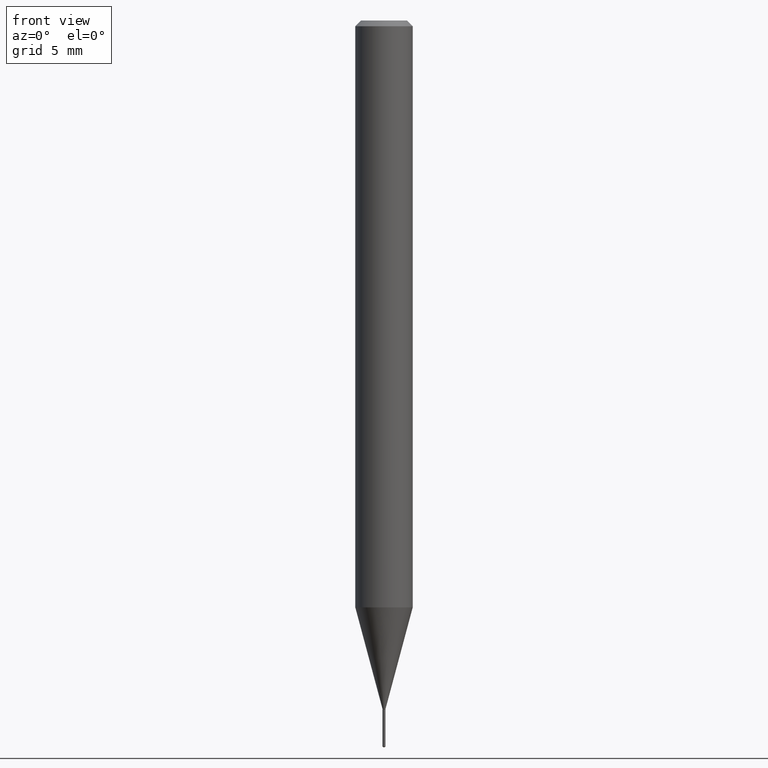
[diagram: clean part render]
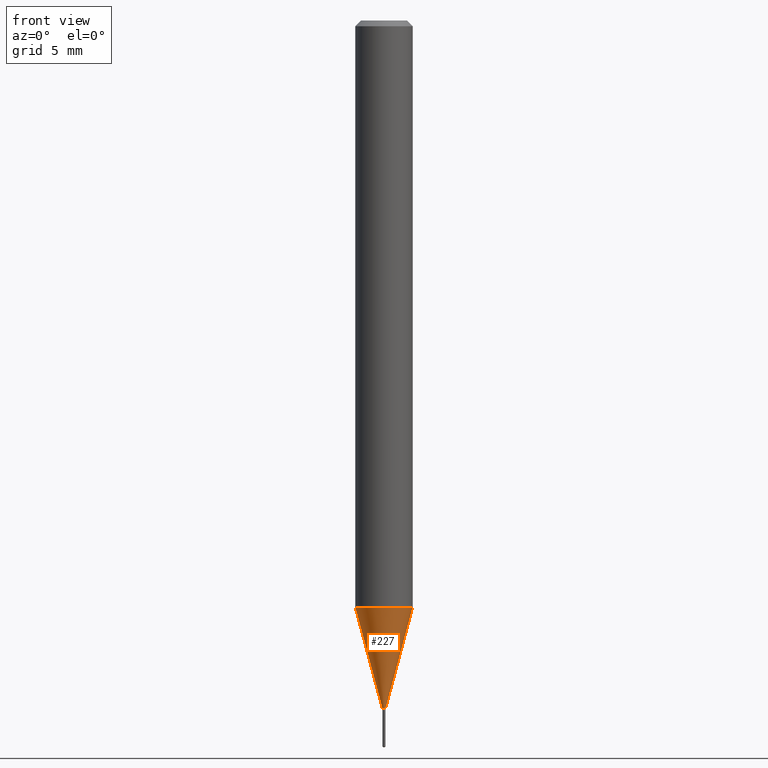
[diagram: same view with one face highlighted and labeled with its STEP entity id]
A machine part, front view. The second image highlights one B-rep face of the part: STEP entity #227.
In plain terms, the highlighted conical surface has half-angle 15 deg.
Its self-contained STEP definition (entity closure, byte-faithful):
#10 = VERTEX_POINT ( 'NONE', #406 ) ;
#26 = CARTESIAN_POINT ( 'NONE',  ( 2.953828850696113745E-29, -4.217284753032831464E-15, -1.207878359856899841 ) ) ;
#30 = DIRECTION ( 'NONE',  ( 0.2588190451025213501, 1.565188264969621968E-15, 0.9659258262890682012 ) ) ;
#36 = CIRCLE ( 'NONE', #320, 0.003150000000000000022 ) ;
#44 = VECTOR ( 'NONE', #30, 39.37007874015747433 ) ;
#57 = EDGE_LOOP ( 'NONE', ( #331, #364, #314, #404 ) ) ;
#67 = EDGE_CURVE ( 'NONE', #372, #10, #212, .T. ) ;
#133 = DIRECTION ( 'NONE',  ( 1.000000000000000000, -6.982962677686263555E-15, 0.000000000000000000 ) ) ;
#146 = DIRECTION ( 'NONE',  ( 1.000000000000000000, -6.982962677686347963E-15, 0.000000000000000000 ) ) ;
#148 = VERTEX_POINT ( 'NONE', #348 ) ;
#193 = CARTESIAN_POINT ( 'NONE',  ( 3.464006563961245725E-29, -4.945683316471316037E-15, -1.416500000000000092 ) ) ;
#200 = LINE ( 'NONE', #274, #44 ) ;
#212 = LINE ( 'NONE', #366, #319 ) ;
#227 = ADVANCED_FACE ( 'NONE', ( #260 ), #349, .T. ) ;
#239 = CARTESIAN_POINT ( 'NONE',  ( -0.003150000000000000022, -4.923999516562641581E-15, -1.416500000000000092 ) ) ;
#260 = FACE_OUTER_BOUND ( 'NONE', #57, .T. ) ;
#265 = AXIS2_PLACEMENT_3D ( 'NONE', #26, #396, #133 ) ;
#274 = CARTESIAN_POINT ( 'NONE',  ( 0.003150000000000000022, -4.967679648906027771E-15, -1.416500000000000092 ) ) ;
#314 = ORIENTED_EDGE ( 'NONE', *, *, #425, .T. ) ;
#315 = DIRECTION ( 'NONE',  ( -2.445468806185136597E-29, 3.491481338843145583E-15, 1.000000000000000000 ) ) ;
#319 = VECTOR ( 'NONE', #330, 39.37007874015747433 ) ;
#320 = AXIS2_PLACEMENT_3D ( 'NONE', #193, #315, #462 ) ;
#330 = DIRECTION ( 'NONE',  ( -0.2588190451025213501, 5.211531920934551042E-15, 0.9659258262890682012 ) ) ;
#331 = ORIENTED_EDGE ( 'NONE', *, *, #67, .F. ) ;
#344 = CARTESIAN_POINT ( 'NONE',  ( 3.464006563961245725E-29, -4.945683316471316037E-15, -1.416500000000000092 ) ) ;
#348 = CARTESIAN_POINT ( 'NONE',  ( 0.003150000000000000022, -4.967679648906027771E-15, -1.416500000000000092 ) ) ;
#349 = CONICAL_SURFACE ( 'NONE', #469, 0.003150000000000000022, 0.2617993877991500740 ) ;
#364 = ORIENTED_EDGE ( 'NONE', *, *, #390, .T. ) ;
#366 = CARTESIAN_POINT ( 'NONE',  ( -0.003150000000000000022, -4.923301220294872979E-15, -1.416500000000000092 ) ) ;
#372 = VERTEX_POINT ( 'NONE', #239 ) ;
#379 = DIRECTION ( 'NONE',  ( -2.445468806185136597E-29, 3.491481338843145583E-15, 1.000000000000000000 ) ) ;
#390 = EDGE_CURVE ( 'NONE', #372, #148, #36, .T. ) ;
#396 = DIRECTION ( 'NONE',  ( -2.445468806185136597E-29, 3.491481338843145583E-15, 1.000000000000000000 ) ) ;
#404 = ORIENTED_EDGE ( 'NONE', *, *, #487, .F. ) ;
#406 = CARTESIAN_POINT ( 'NONE',  ( -0.05905000000000014404, -3.797709267566491971E-15, -1.207878359856899841 ) ) ;
#425 = EDGE_CURVE ( 'NONE', #148, #473, #200, .T. ) ;
#438 = CARTESIAN_POINT ( 'NONE',  ( 0.05905000000000014404, -4.629628699150206384E-15, -1.207878359856899841 ) ) ;
#462 = DIRECTION ( 'NONE',  ( 1.000000000000000000, -6.982962677686347963E-15, 0.000000000000000000 ) ) ;
#469 = AXIS2_PLACEMENT_3D ( 'NONE', #344, #379, #146 ) ;
#473 = VERTEX_POINT ( 'NONE', #438 ) ;
#477 = CIRCLE ( 'NONE', #265, 0.05905000000000014404 ) ;
#487 = EDGE_CURVE ( 'NONE', #10, #473, #477, .T. ) ;